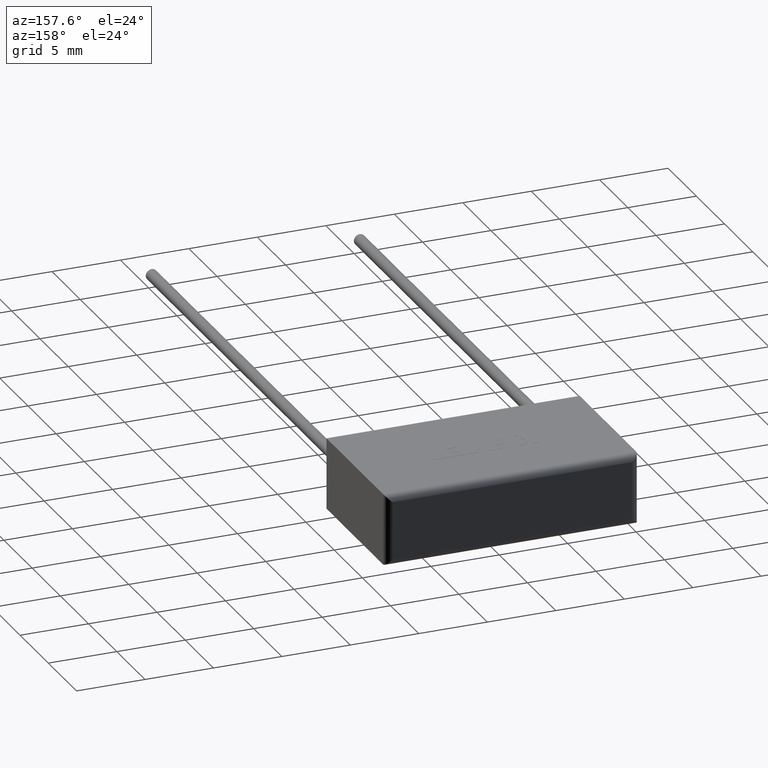
[diagram: clean part render]
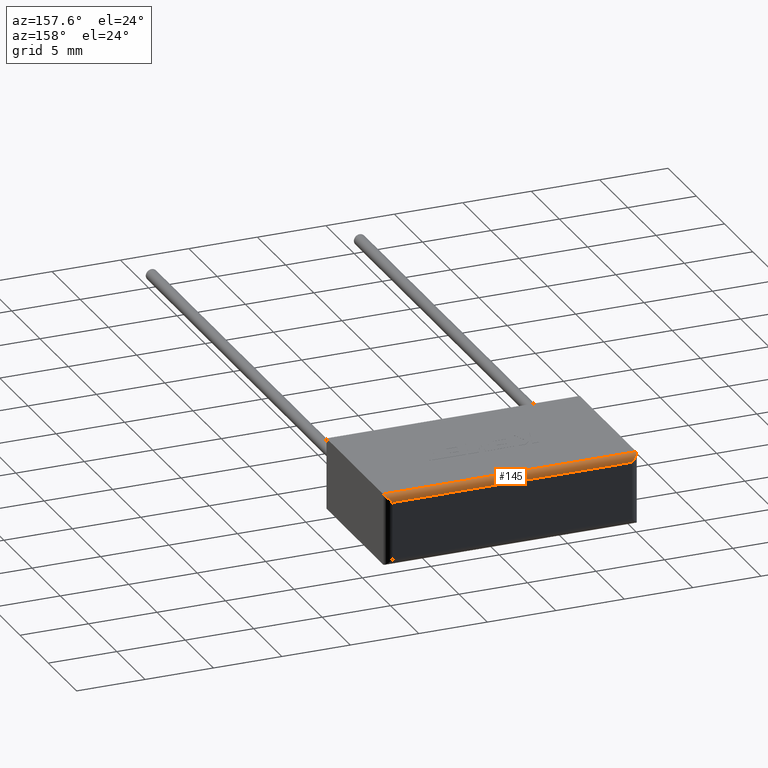
[diagram: same view with one face highlighted and labeled with its STEP entity id]
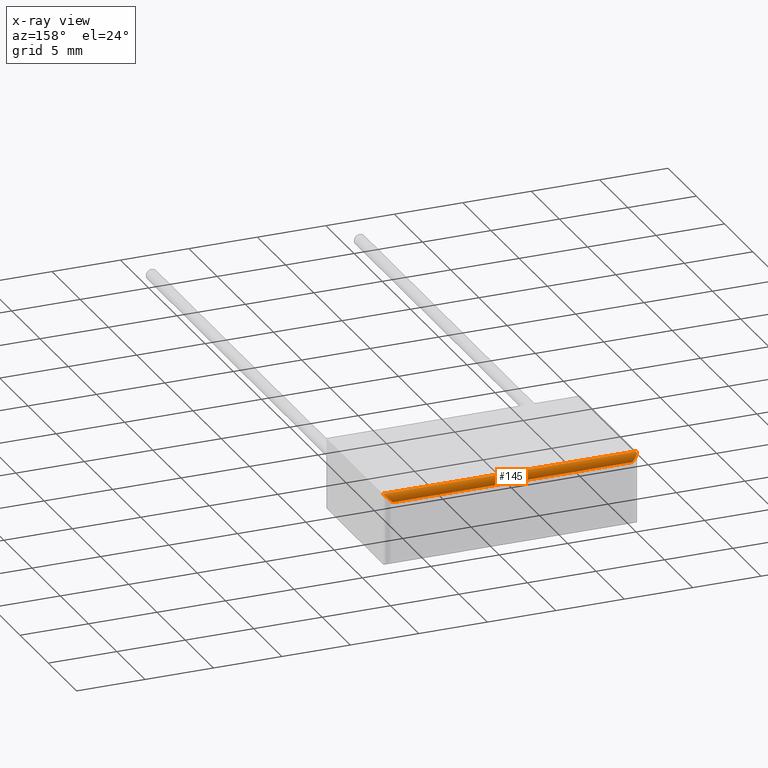
[diagram: x-ray of the same camera — body ghosted, the highlighted face saturated]
A machine part, auxiliary view. The second image highlights one B-rep face of the part: STEP entity #145.
The next image is the same camera in x-ray: the body ghosted, the highlighted face saturated — about 0% of this face is hidden behind the body in this view.
In plain terms, the highlighted cylindrical surface (edge-blend (fillet) strip) has radius 0.5 mm, axis along (-1, 0, 0).
Its self-contained STEP definition (entity closure, byte-faithful):
#126 = FACE_OUTER_BOUND ( 'NONE', #1331, .T. ) ;
#129 = CARTESIAN_POINT ( 'NONE',  ( 0.0000000000000000000, 10.00000000000000000, 4.699999999999999300 ) ) ;
#145 = ADVANCED_FACE ( 'NONE', ( #126 ), #1311, .T. ) ;
#156 = ORIENTED_EDGE ( 'NONE', *, *, #1488, .F. ) ;
#300 = CARTESIAN_POINT ( 'NONE',  ( 0.0000000000000000000, 10.00000000000000000, 5.200000000000000200 ) ) ;
#309 = VERTEX_POINT ( 'NONE', #1914 ) ;
#388 = CARTESIAN_POINT ( 'NONE',  ( 18.00000000000000000, 10.50000000000000000, 4.699999999999999300 ) ) ;
#421 = CARTESIAN_POINT ( 'NONE',  ( 18.00000000000000000, 10.50000000000000000, 4.699999999999999300 ) ) ;
#429 = LINE ( 'NONE', #2032, #1168 ) ;
#672 = CARTESIAN_POINT ( 'NONE',  ( 18.50000000000000000, 9.999999999999996400, 5.200000000000000200 ) ) ;
#706 = ORIENTED_EDGE ( 'NONE', *, *, #1627, .F. ) ;
#731 = EDGE_CURVE ( 'NONE', #309, #1778, #1328, .T. ) ;
#763 = CARTESIAN_POINT ( 'NONE',  ( -1.806771480159887200E-015, 10.29289321881345000, 5.200000000000001100 ) ) ;
#939 = CARTESIAN_POINT ( 'NONE',  ( 0.0000000000000000000, 9.999999999999996400, 5.200000000000000200 ) ) ;
#941 = DIRECTION ( 'NONE',  ( -1.000000000000000000, 0.0000000000000000000, 0.0000000000000000000 ) ) ;
#960 = AXIS2_PLACEMENT_3D ( 'NONE', #129, #941, #2064 ) ;
#1064 = DIRECTION ( 'NONE',  ( -1.000000000000000000, 0.0000000000000000000, 0.0000000000000000000 ) ) ;
#1168 = VECTOR ( 'NONE', #1843, 1000.000000000000000 ) ;
#1197 = CARTESIAN_POINT ( 'NONE',  ( 18.50000000000000000, 9.999999999999996400, 5.200000000000000200 ) ) ;
#1247 = VECTOR ( 'NONE', #1064, 1000.000000000000000 ) ;
#1311 = CYLINDRICAL_SURFACE ( 'NONE', #960, 0.5000000000000004400 ) ;
#1328 =( BOUNDED_CURVE ( )  B_SPLINE_CURVE ( 3, ( #1872, #1494, #763, #939 ),
 .UNSPECIFIED., .F., .F. ) 
 B_SPLINE_CURVE_WITH_KNOTS ( ( 4, 4 ),
 ( 1.570796326794896800, 3.141592653589799800 ),
 .UNSPECIFIED. ) 
 CURVE ( )  GEOMETRIC_REPRESENTATION_ITEM ( )  RATIONAL_B_SPLINE_CURVE ( ( 1.000000000000000000, 0.8047378541243634900, 0.8047378541243634900, 1.000000000000000000 ) ) 
 REPRESENTATION_ITEM ( '' )  );
#1331 = EDGE_LOOP ( 'NONE', ( #1951, #156, #2336, #706 ) ) ;
#1488 = EDGE_CURVE ( 'NONE', #1536, #1778, #1758, .T. ) ;
#1494 = CARTESIAN_POINT ( 'NONE',  ( 0.2071067811865460200, 10.49999999999999800, 4.992893218813453200 ) ) ;
#1536 = VERTEX_POINT ( 'NONE', #672 ) ;
#1578 = CARTESIAN_POINT ( 'NONE',  ( 18.29289321881345000, 10.49999999999999800, 4.992893218813453200 ) ) ;
#1627 = EDGE_CURVE ( 'NONE', #309, #2300, #429, .T. ) ;
#1758 = LINE ( 'NONE', #300, #1247 ) ;
#1778 = VERTEX_POINT ( 'NONE', #1839 ) ;
#1839 = CARTESIAN_POINT ( 'NONE',  ( 0.0000000000000000000, 9.999999999999996400, 5.200000000000000200 ) ) ;
#1843 = DIRECTION ( 'NONE',  ( 1.000000000000000000, -0.0000000000000000000, -0.0000000000000000000 ) ) ;
#1872 = CARTESIAN_POINT ( 'NONE',  ( 0.5000000000000000000, 10.50000000000000000, 4.699999999999999300 ) ) ;
#1914 = CARTESIAN_POINT ( 'NONE',  ( 0.5000000000000000000, 10.50000000000000000, 4.699999999999999300 ) ) ;
#1933 = CARTESIAN_POINT ( 'NONE',  ( 18.50000000000000400, 10.29289321881345000, 5.200000000000001100 ) ) ;
#1951 = ORIENTED_EDGE ( 'NONE', *, *, #731, .T. ) ;
#1981 =( BOUNDED_CURVE ( )  B_SPLINE_CURVE ( 3, ( #421, #1578, #1933, #1197 ),
 .UNSPECIFIED., .F., .F. ) 
 B_SPLINE_CURVE_WITH_KNOTS ( ( 4, 4 ),
 ( 1.570796326794896600, 3.141592653589799800 ),
 .UNSPECIFIED. ) 
 CURVE ( )  GEOMETRIC_REPRESENTATION_ITEM ( )  RATIONAL_B_SPLINE_CURVE ( ( 1.000000000000000000, 0.8047378541243634900, 0.8047378541243634900, 1.000000000000000000 ) ) 
 REPRESENTATION_ITEM ( '' )  );
#2032 = CARTESIAN_POINT ( 'NONE',  ( 0.0000000000000000000, 10.50000000000000000, 4.699999999999999300 ) ) ;
#2064 = DIRECTION ( 'NONE',  ( 0.0000000000000000000, 0.0000000000000000000, 1.000000000000000000 ) ) ;
#2300 = VERTEX_POINT ( 'NONE', #388 ) ;
#2336 = ORIENTED_EDGE ( 'NONE', *, *, #2435, .F. ) ;
#2435 = EDGE_CURVE ( 'NONE', #2300, #1536, #1981, .T. ) ;